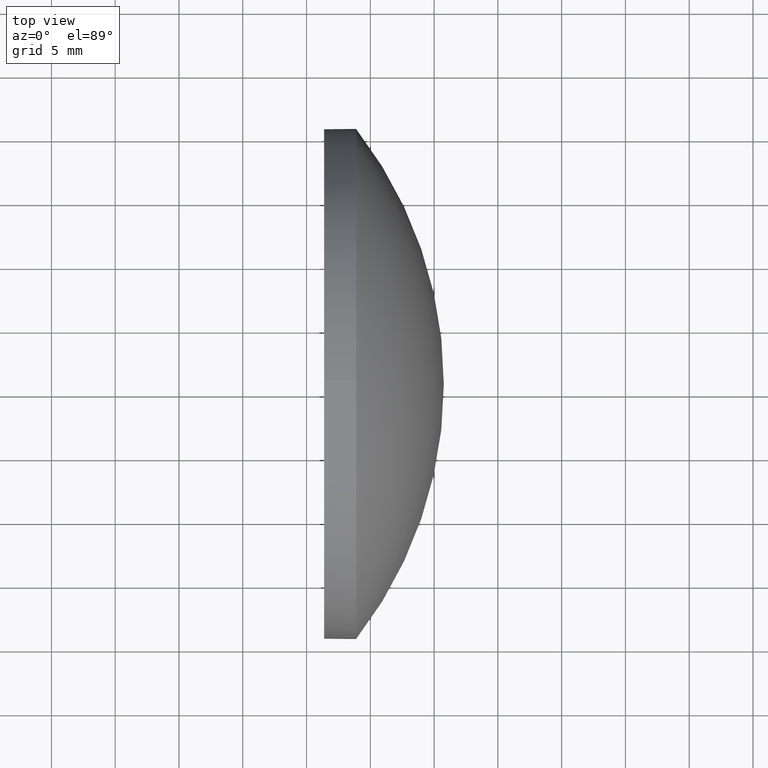
[diagram: clean part render]
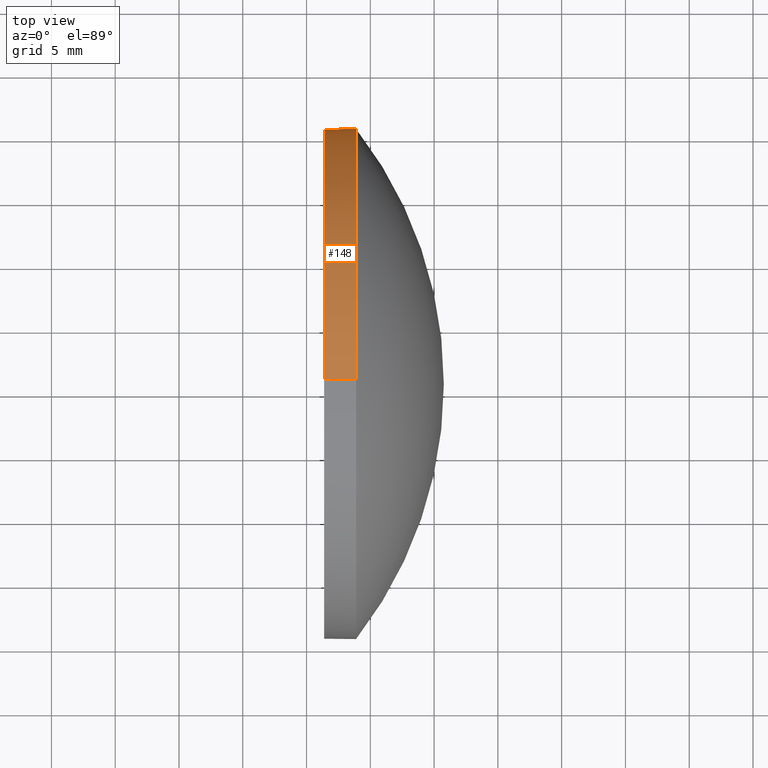
[diagram: same view with one face highlighted and labeled with its STEP entity id]
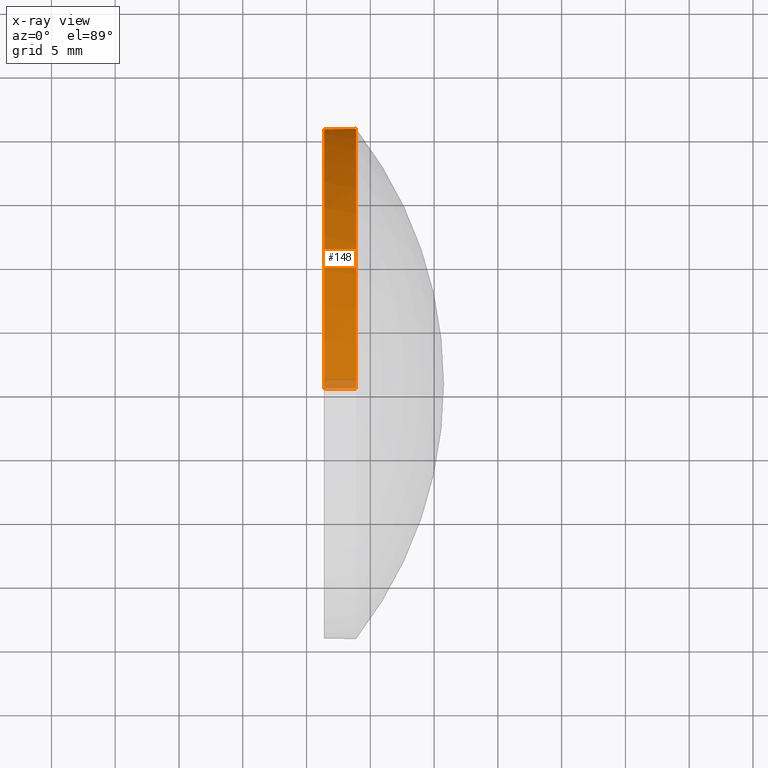
[diagram: x-ray of the same camera — body ghosted, the highlighted face saturated]
A machine part, top view. The second image highlights one B-rep face of the part: STEP entity #148.
The next image is the same camera in x-ray: the body ghosted, the highlighted face saturated — about 3% of this face is hidden behind the body in this view.
In plain terms, the highlighted cylindrical surface (partial cylindrical patch) has radius 20 mm, axis along (-1, -0, -0).
Its self-contained STEP definition (entity closure, byte-faithful):
#2 = AXIS2_PLACEMENT_3D ( 'NONE', #183, #15, #97 ) ;
#4 = VERTEX_POINT ( 'NONE', #123 ) ;
#8 = EDGE_CURVE ( 'NONE', #32, #38, #172, .T. ) ;
#9 = CARTESIAN_POINT ( 'NONE',  ( 498.8823540077719400, 40.65244250545561000, 19.99999999999999600 ) ) ;
#10 = CYLINDRICAL_SURFACE ( 'NONE', #65, 19.99999999999999600 ) ;
#15 = DIRECTION ( 'NONE',  ( -1.000000000000000000, -0.0000000000000000000, -0.0000000000000000000 ) ) ;
#17 = CARTESIAN_POINT ( 'NONE',  ( 492.4174003967859800, 40.65244250545561000, -19.99999999999999600 ) ) ;
#19 = EDGE_CURVE ( 'NONE', #32, #4, #132, .T. ) ;
#23 = VECTOR ( 'NONE', #30, 1000.000000000000000 ) ;
#26 = DIRECTION ( 'NONE',  ( 0.0000000000000000000, 0.0000000000000000000, 1.000000000000000000 ) ) ;
#29 = CARTESIAN_POINT ( 'NONE',  ( 496.3823540077719400, 40.65244250545561000, -19.99999999999999600 ) ) ;
#30 = DIRECTION ( 'NONE',  ( -1.000000000000000000, -0.0000000000000000000, -0.0000000000000000000 ) ) ;
#32 = VERTEX_POINT ( 'NONE', #9 ) ;
#37 = VERTEX_POINT ( 'NONE', #179 ) ;
#38 = VERTEX_POINT ( 'NONE', #42 ) ;
#41 = AXIS2_PLACEMENT_3D ( 'NONE', #153, #95, #26 ) ;
#42 = CARTESIAN_POINT ( 'NONE',  ( 496.3823540077719400, 40.65244250545561000, 19.99999999999999600 ) ) ;
#45 = ORIENTED_EDGE ( 'NONE', *, *, #8, .F. ) ;
#51 = EDGE_CURVE ( 'NONE', #38, #186, #167, .T. ) ;
#53 = ORIENTED_EDGE ( 'NONE', *, *, #19, .T. ) ;
#55 = AXIS2_PLACEMENT_3D ( 'NONE', #60, #84, #125 ) ;
#60 = CARTESIAN_POINT ( 'NONE',  ( 496.3823540077719400, 40.65244250545561000, 0.0000000000000000000 ) ) ;
#62 = CIRCLE ( 'NONE', #2, 19.99999999999999600 ) ;
#65 = AXIS2_PLACEMENT_3D ( 'NONE', #127, #170, #142 ) ;
#66 = VECTOR ( 'NONE', #94, 1000.000000000000000 ) ;
#72 = FACE_OUTER_BOUND ( 'NONE', #152, .T. ) ;
#73 = CARTESIAN_POINT ( 'NONE',  ( 492.4174003967859800, 40.65244250545561000, 19.99999999999999600 ) ) ;
#78 = ORIENTED_EDGE ( 'NONE', *, *, #51, .F. ) ;
#84 = DIRECTION ( 'NONE',  ( -1.000000000000000000, -0.0000000000000000000, -0.0000000000000000000 ) ) ;
#86 = EDGE_CURVE ( 'NONE', #4, #37, #62, .T. ) ;
#94 = DIRECTION ( 'NONE',  ( -1.000000000000000000, -0.0000000000000000000, -0.0000000000000000000 ) ) ;
#95 = DIRECTION ( 'NONE',  ( -1.000000000000000000, -0.0000000000000000000, -0.0000000000000000000 ) ) ;
#97 = DIRECTION ( 'NONE',  ( 0.0000000000000000000, 0.0000000000000000000, 1.000000000000000000 ) ) ;
#123 = CARTESIAN_POINT ( 'NONE',  ( 498.8823540077719400, 60.65244250545559600, 0.0000000000000000000 ) ) ;
#124 = ORIENTED_EDGE ( 'NONE', *, *, #176, .T. ) ;
#125 = DIRECTION ( 'NONE',  ( 0.0000000000000000000, 0.0000000000000000000, 1.000000000000000000 ) ) ;
#127 = CARTESIAN_POINT ( 'NONE',  ( 492.4174003967859800, 40.65244250545561000, 0.0000000000000000000 ) ) ;
#132 = CIRCLE ( 'NONE', #41, 19.99999999999999600 ) ;
#136 = ORIENTED_EDGE ( 'NONE', *, *, #86, .T. ) ;
#142 = DIRECTION ( 'NONE',  ( 0.0000000000000000000, 0.0000000000000000000, 1.000000000000000000 ) ) ;
#148 = ADVANCED_FACE ( 'NONE', ( #72 ), #10, .T. ) ;
#152 = EDGE_LOOP ( 'NONE', ( #136, #124, #78, #45, #53 ) ) ;
#153 = CARTESIAN_POINT ( 'NONE',  ( 498.8823540077719400, 40.65244250545561000, 0.0000000000000000000 ) ) ;
#163 = LINE ( 'NONE', #17, #23 ) ;
#167 = CIRCLE ( 'NONE', #55, 19.99999999999999600 ) ;
#170 = DIRECTION ( 'NONE',  ( -1.000000000000000000, -0.0000000000000000000, -0.0000000000000000000 ) ) ;
#172 = LINE ( 'NONE', #73, #66 ) ;
#176 = EDGE_CURVE ( 'NONE', #37, #186, #163, .T. ) ;
#179 = CARTESIAN_POINT ( 'NONE',  ( 498.8823540077719400, 40.65244250545561000, -19.99999999999999600 ) ) ;
#183 = CARTESIAN_POINT ( 'NONE',  ( 498.8823540077719400, 40.65244250545561000, 0.0000000000000000000 ) ) ;
#186 = VERTEX_POINT ( 'NONE', #29 ) ;